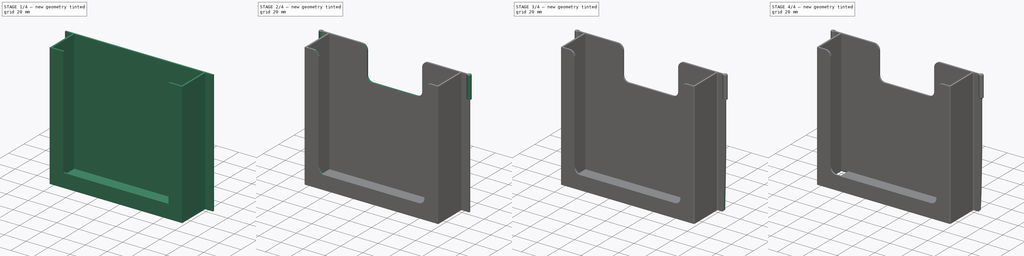
[diagram: build sequence overview — one tinted view per stage of 4, left to right]
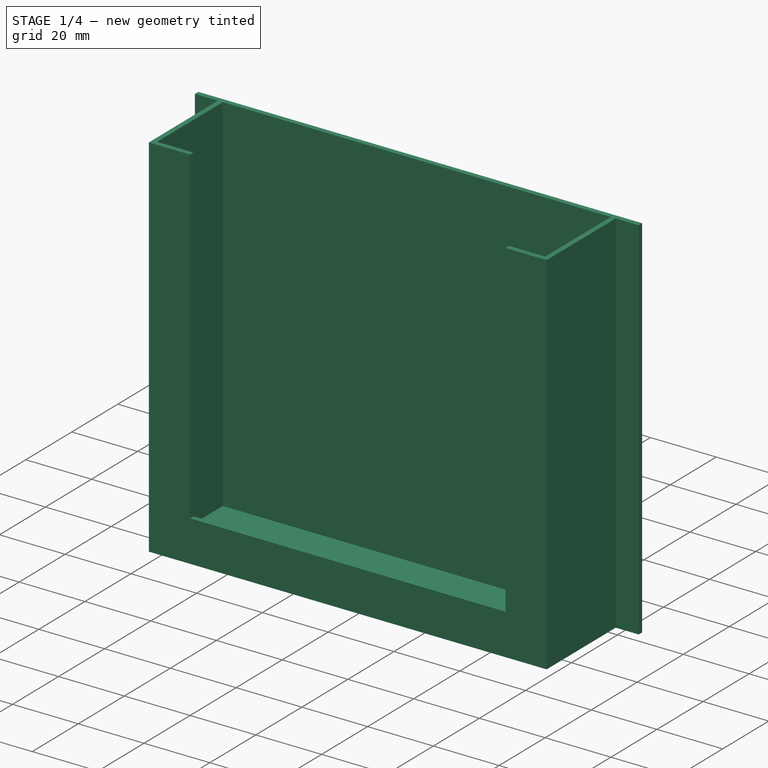
[diagram: stage 1 of 4 — iso view after this stage's code; geometry added in this stage tinted green]
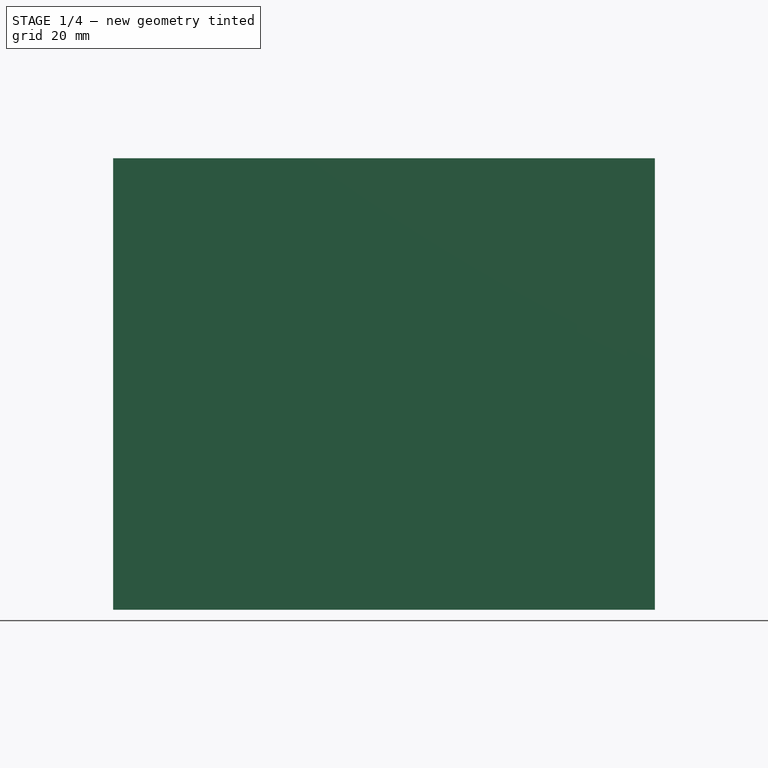
[diagram: stage 1 of 4 — front view after this stage's code; geometry added in this stage tinted green]
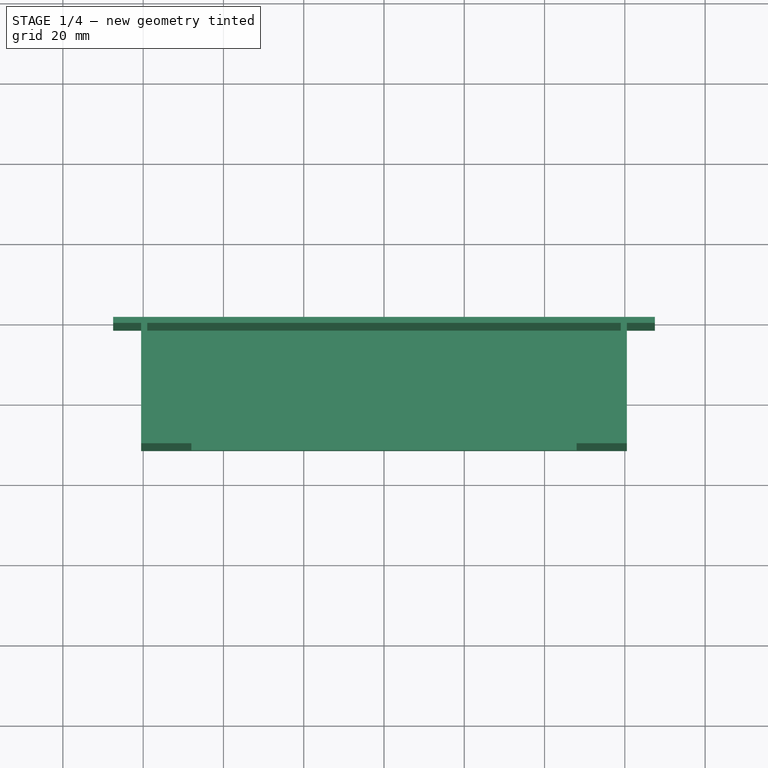
[diagram: stage 1 of 4 — top view after this stage's code; geometry added in this stage tinted green]
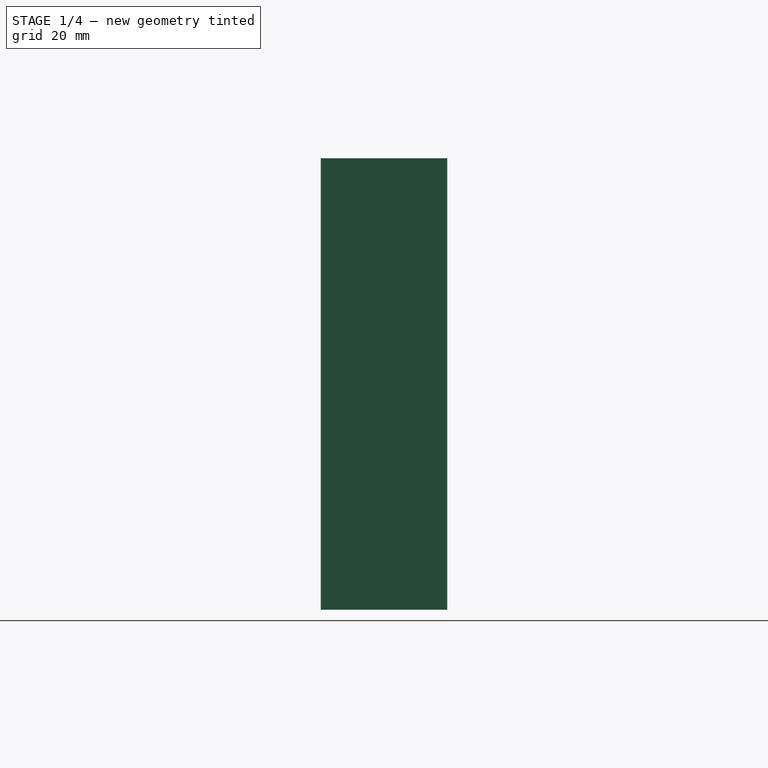
[diagram: stage 1 of 4 — right view after this stage's code; geometry added in this stage tinted green]
FCSTD DOCUMENT  (FreeCAD 0.19R24276 (Git))
Label: esd_insert_test_big
License: All rights reserved
LicenseURL: http://en.wikipedia.org/wiki/All_rights_reserved
objects: Sketcher::SketchObject×6, PartDesign::Pocket×4, PartDesign::Chamfer×4, PartDesign::Pad×2, PartDesign::Fillet×2, PartDesign::Body×1
note: 31 computed .brp shape members not serialized (recipe doc carries the construction recipe); baked Part::Feature solids carry a one-line shape summary decoded from their .brp

FEATURE [Sketcher::SketchObject] Sketch
  FullyConstrained = true
  MapMode = 5
  Support = -> [XY_Plane]
  sketch-geometry (34):
    g0: LineSegment StartX=-67.5 StartY=0 StartZ=0 EndX=67.5 EndY=0 EndZ=0
    g1: LineSegment StartX=-67.5 StartY=0 StartZ=0 EndX=-67.5 EndY=-1.5 EndZ=0
    g2: LineSegment StartX=-67.5 StartY=-1.5 StartZ=0 EndX=-60.5 EndY=-1.5 EndZ=0
    g3: LineSegment StartX=-60.5 StartY=-1.5 StartZ=0 EndX=-60.5 EndY=-31.5 EndZ=0
    g4: LineSegment StartX=-60.5 StartY=-31.5 StartZ=0 EndX=-49 EndY=-31.5 EndZ=0
    g5: LineSegment StartX=-49 StartY=-31.5 StartZ=0 EndX=-49 EndY=-30 EndZ=0
    g6: LineSegment StartX=-49 StartY=-30 StartZ=0 EndX=-59 EndY=-30 EndZ=0
    g7: LineSegment StartX=-59 StartY=-30 StartZ=0 EndX=-59 EndY=-1.5 EndZ=0
    g8: LineSegment StartX=-59 StartY=-1.5 StartZ=0 EndX=59 EndY=-1.5 EndZ=0
    g9: LineSegment StartX=59 StartY=-1.5 StartZ=0 EndX=59 EndY=-30 EndZ=0
    g10: LineSegment StartX=59 StartY=-30 StartZ=0 EndX=49 EndY=-30 EndZ=0
    g11: LineSegment StartX=49 StartY=-30 StartZ=0 EndX=49 EndY=-31.5 EndZ=0
    g12: LineSegment StartX=49 StartY=-31.5 StartZ=0 EndX=60.5 EndY=-31.5 EndZ=0
    g13: LineSegment StartX=60.5 StartY=-31.5 StartZ=0 EndX=60.5 EndY=-1.5 EndZ=0
    g14: LineSegment StartX=60.5 StartY=-1.5 StartZ=0 EndX=67.5 EndY=-1.5 EndZ=0
    g15: LineSegment StartX=67.5 StartY=-1.5 StartZ=0 EndX=67.5 EndY=0 EndZ=0
    g16: LineSegment StartX=-53.5 StartY=-7.25 StartZ=0 EndX=53.5 EndY=-7.25 EndZ=0
    g17: LineSegment StartX=53.5 StartY=-7.25 StartZ=0 EndX=53.5 EndY=-24.25 EndZ=0
    g18: LineSegment StartX=53.5 StartY=-24.25 StartZ=0 EndX=-53.5 EndY=-24.25 EndZ=0
    g19: LineSegment StartX=-53.5 StartY=-24.25 StartZ=0 EndX=-53.5 EndY=-7.25 EndZ=0
    g20: LineSegment StartX=-59 StartY=-1.5 StartZ=0 EndX=59 EndY=-1.5 EndZ=0
    g21: LineSegment StartX=59 StartY=-1.5 StartZ=0 EndX=59 EndY=-30 EndZ=0
    g22: LineSegment StartX=59 StartY=-30 StartZ=0 EndX=-59 EndY=-30 EndZ=0
    g23: LineSegment StartX=-59 StartY=-30 StartZ=0 EndX=-59 EndY=-1.5 EndZ=0
    g24: LineSegment StartX=-53.5 StartY=-7.25 StartZ=0 EndX=0 EndY=-15.75 EndZ=0
    g25: LineSegment StartX=0 StartY=-15.75 StartZ=0 EndX=53.5 EndY=-7.25 EndZ=0
    g26: LineSegment StartX=-53.5 StartY=-24.25 StartZ=0 EndX=0 EndY=-15.75 EndZ=0
    g27: LineSegment StartX=-59 StartY=-1.5 StartZ=0 EndX=0 EndY=-15.75 EndZ=0
    g28: LineSegment StartX=0 StartY=-15.75 StartZ=0 EndX=59 EndY=-1.5 EndZ=0
    g29: LineSegment StartX=0 StartY=-15.75 StartZ=0 EndX=-59 EndY=-30 EndZ=0
    g30: LineSegment StartX=-67.5 StartY=0 StartZ=0 EndX=0 EndY=-15.75 EndZ=0
    g31: LineSegment StartX=0 StartY=-15.75 StartZ=0 EndX=67.5 EndY=1.8e-15 EndZ=0
    g32: LineSegment StartX=-60.5 StartY=-1.5 StartZ=0 EndX=-59 EndY=-1.5 EndZ=0
    g33: LineSegment StartX=60.5 StartY=-31.5 StartZ=0 EndX=-60.5 EndY=-31.5 EndZ=0
  constraints (91):
    c: PointOnObject(g0,g-1)
    c: PointOnObject(g0,g-1)
    c: Coincident(g0,g1)
    c: Vertical(g1)
    c: Coincident(g1,g2)
    c: Horizontal(g2)
    c: Coincident(g2,g3)
    c: Vertical(g3)
    c: Coincident(g3,g4)
    c: Horizontal(g4)
    c: Coincident(g4,g5)
    c: Vertical(g5)
    c: Coincident(g5,g6)
    c: Horizontal(g6)
    c: Coincident(g6,g7)
    c: Vertical(g7)
    c: Coincident(g7,g8)
    c: Horizontal(g8)
    c: Coincident(g8,g9)
    c: Vertical(g9)
    c: Coincident(g9,g10)
    c: Horizontal(g10)
    c: Coincident(g10,g11)
    c: Vertical(g11)
    c: Coincident(g11,g12)
    c: Horizontal(g12)
    c: Coincident(g12,g13)
    c: Vertical(g13)
    c: Coincident(g13,g14)
    c: Horizontal(g14)
    c: Coincident(g14,g15)
    c: Coincident(g15,g0)
    c: Vertical(g15)
    c: Coincident(g16,g17)
    c: Coincident(g17,g18)
    c: Coincident(g18,g19)
    c: Coincident(g19,g16)
    c: Horizontal(g16)
    c: Horizontal(g18)
    c: Vertical(g17)
    c: Vertical(g19)
    c: DistanceX(g16,g16) = 107
    c: DistanceY(g19,g19) = 17
    c: Coincident(g20,g21)
    c: Coincident(g21,g22)
    c: Coincident(g22,g23)
    c: Coincident(g23,g20)
    c: Horizontal(g22)
    c: Vertical(g21)
    c: Vertical(g23)
    c: DistanceX(g20,g20) = 118
    c: DistanceY(g23,g23) = 28.5
    c: Coincident(g16,g24)
    c: PointOnObject(g24,g-2)
    c: Coincident(g24,g25)
    c: Coincident(g25,g16)
    c: Coincident(g18,g26)
    c: Coincident(g26,g24)
    c: Coincident(g20,g27)
    c: Coincident(g27,g24)
    c: Coincident(g27,g28)
    c: Coincident(g28,g20)
    c: Coincident(g24,g29)
    c: Coincident(g29,g22)
    c: Equal(g24,g26)
    c: Equal(g26,g25)
    c: Equal(g27,g28)
    c: Equal(g28,g29)
    c: DistanceY(g1,g1) = 1.5
    c: Equal(g1,g15)
    c: Coincident(g0,g30)
    c: Coincident(g30,g24)
    c: Coincident(g30,g31)
    c: Coincident(g31,g0)
    c: Equal(g31,g30)
    c: DistanceX(g0,g0) = 135
    c: Coincident(g7,g20)
    c: Coincident(g20,g8)
    c: Coincident(g32,g2)
    c: Coincident(g32,g7)
    c: Horizontal(g32)
    c: Equal(g14,g2)
    c: DistanceX(g8,g13) = 1.5
    c: PointOnObject(g5,g22)
    c: PointOnObject(g10,g22)
    c: Equal(g11,g15)
    c: Equal(g5,g1)
    c: Equal(g4,g12)
    c: DistanceX(g10,g10) = 10
    c: Coincident(g33,g13)
    c: Coincident(g33,g3)
FEATURE [PartDesign::Pad] Pad
  Direction = (1,1,1)
  Length = 112.5
  Length2 = 100
  Profile = -> Sketch
  Reversed = true
  Type = 0
FEATURE [Sketcher::SketchObject] Sketch002
  FullyConstrained = true
  MapMode = 5
  Support = -> [XY_Plane]
  sketch-geometry (6):
    g0: LineSegment StartX=-59 StartY=-1.5 StartZ=0 EndX=59 EndY=-1.5 EndZ=0
    g1: LineSegment StartX=59 StartY=-1.5 StartZ=0 EndX=59 EndY=-30 EndZ=0
    g2: LineSegment StartX=59 StartY=-30 StartZ=0 EndX=-59 EndY=-30 EndZ=0
    g3: LineSegment StartX=-59 StartY=-30 StartZ=0 EndX=-59 EndY=-1.5 EndZ=0
    g4: LineSegment StartX=-59 StartY=-30 StartZ=0 EndX=0 EndY=0 EndZ=0
    g5: LineSegment StartX=0 StartY=0 StartZ=0 EndX=59 EndY=-30 EndZ=0
  constraints (16):
    c: Coincident(g0,g1)
    c: Coincident(g1,g2)
    c: Coincident(g2,g3)
    c: Coincident(g3,g0)
    c: Horizontal(g0)
    c: Horizontal(g2)
    c: Vertical(g1)
    c: Vertical(g3)
    c: DistanceY(g0,g-1) = 1.5
    c: DistanceX(g0,g0) = 118
    c: Coincident(g2,g4)
    c: Coincident(g4,g-1)
    c: Coincident(g4,g5)
    c: Coincident(g5,g1)
    c: Equal(g4,g5)
    c: DistanceY(g3,g3) = 28.5
FEATURE [PartDesign::Pocket] Pocket
  BaseFeature = -> Pad
  Length = 111
  Length2 = 100
  Profile = -> Sketch002
  Type = 0
FEATURE [Sketcher::SketchObject] Sketch003
  FullyConstrained = true
  MapMode = 5
  Support = -> [XY_Plane]
  sketch-geometry (6):
    g0: LineSegment StartX=-48 StartY=-10 StartZ=0 EndX=0 EndY=0 EndZ=0
    g1: LineSegment StartX=0 StartY=0 StartZ=0 EndX=48 EndY=-10 EndZ=0
    g2: LineSegment StartX=-48 StartY=-10 StartZ=0 EndX=48 EndY=-10 EndZ=0
    g3: LineSegment StartX=48 StartY=-10 StartZ=0 EndX=48 EndY=-40 EndZ=0
    g4: LineSegment StartX=48 StartY=-40 StartZ=0 EndX=-48 EndY=-40 EndZ=0
    g5: LineSegment StartX=-48 StartY=-40 StartZ=0 EndX=-48 EndY=-10 EndZ=0
  constraints (16):
    c: Coincident(g0,g-1)
    c: Coincident(g0,g1)
    c: Coincident(g2,g3)
    c: Coincident(g3,g4)
    c: Coincident(g4,g5)
    c: Coincident(g5,g2)
    c: Horizontal(g2)
    c: Horizontal(g4)
    c: Vertical(g3)
    c: Vertical(g5)
    c: Coincident(g2,g0)
    c: Coincident(g2,g1)
    c: DistanceX(g2,g2) = 96
    c: Equal(g0,g1)
    c: DistanceY(g2,g-1) = 10
    c: DistanceY(g5,g5) = 30
FEATURE [PartDesign::Pocket] Pocket001
  BaseFeature = -> Pocket
  Length = 100
  Length2 = 100
  Profile = -> Sketch003
  Type = 0
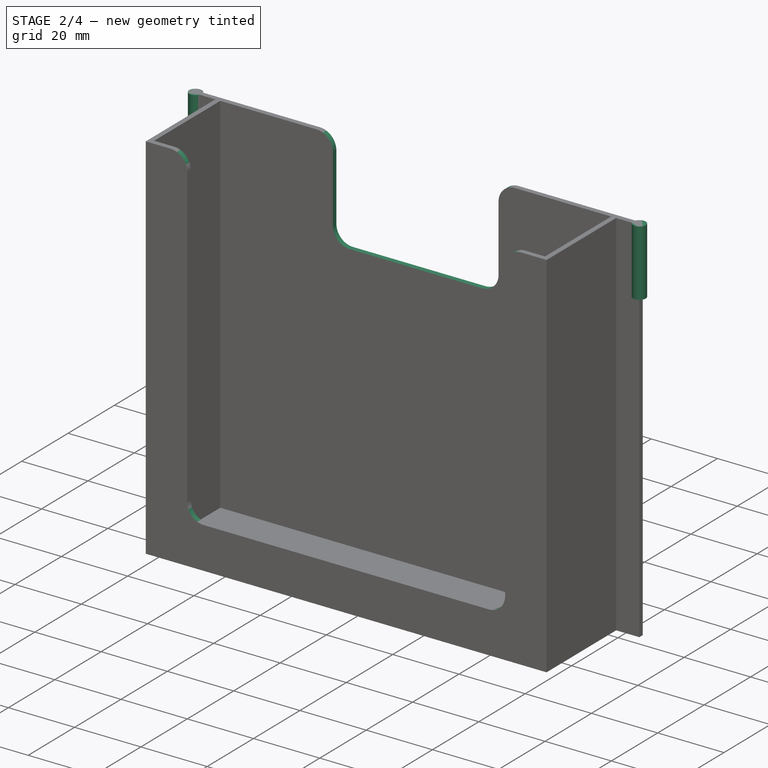
[diagram: stage 2 of 4 — iso view after this stage's code; geometry added in this stage tinted green]
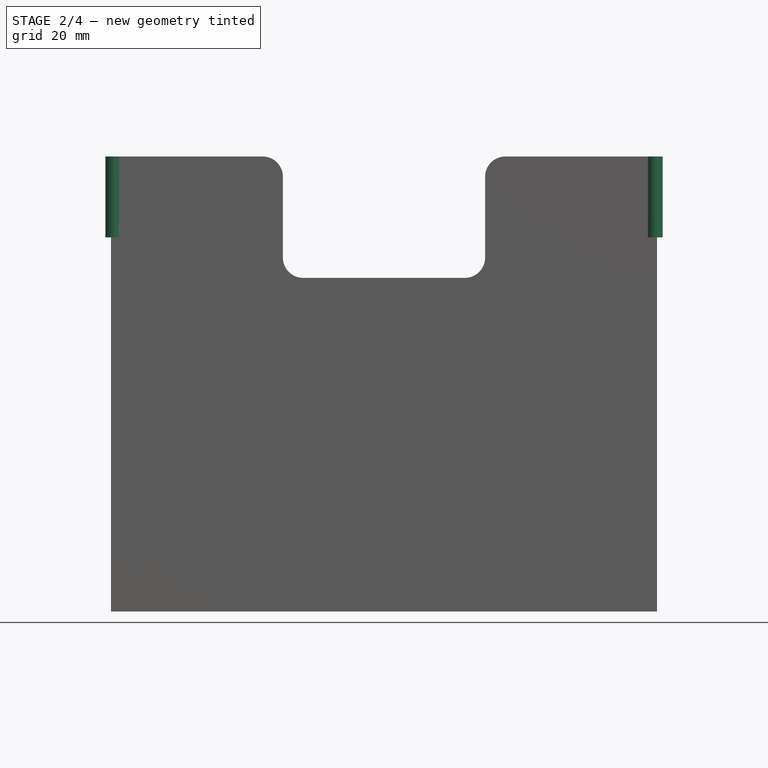
[diagram: stage 2 of 4 — front view after this stage's code; geometry added in this stage tinted green]
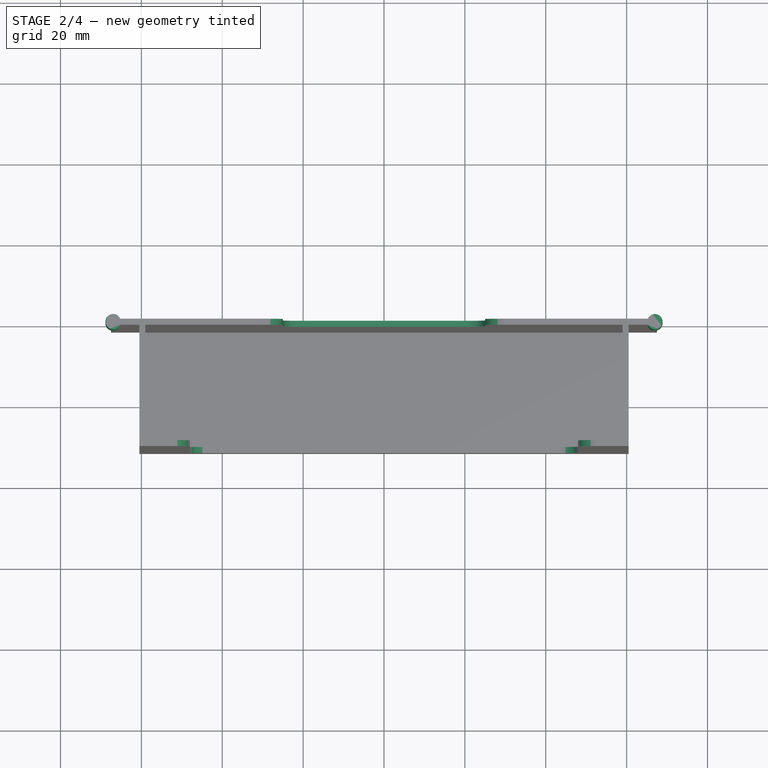
[diagram: stage 2 of 4 — top view after this stage's code; geometry added in this stage tinted green]
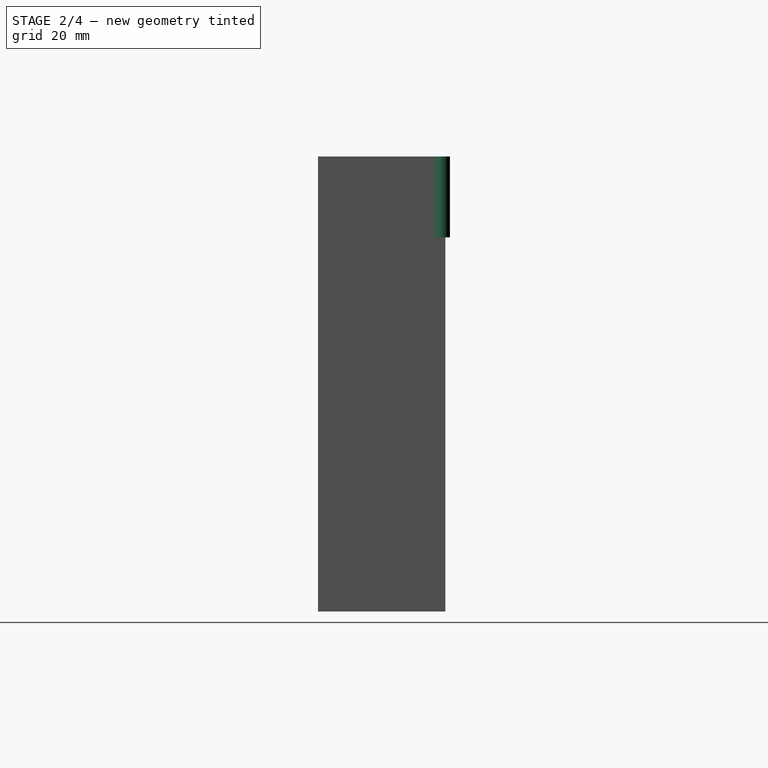
[diagram: stage 2 of 4 — right view after this stage's code; geometry added in this stage tinted green]
FEATURE [Sketcher::SketchObject] Sketch004
  FullyConstrained = true
  MapMode = 5
  Support = -> [XY_Plane]
  sketch-geometry (6):
    g0: Circle CenterX=-67 CenterY=-0.75 CenterZ=0 NormalX=0 NormalY=0 NormalZ=1 AngleXU=0 Radius=1.9
    g1: Circle CenterX=67 CenterY=-0.75 CenterZ=0 NormalX=0 NormalY=0 NormalZ=1 AngleXU=0 Radius=1.9
    g2: LineSegment StartX=-67 StartY=-0.75 StartZ=0 EndX=-67 EndY=0 EndZ=0
    g3: LineSegment StartX=-67 StartY=0 StartZ=0 EndX=0 EndY=0 EndZ=0
    g4: LineSegment StartX=0 StartY=0 StartZ=0 EndX=67 EndY=0 EndZ=0
    g5: LineSegment StartX=67 StartY=0 StartZ=0 EndX=67 EndY=-0.75 EndZ=0
  constraints (16):
    c: Coincident(g2,g0)
    c: Coincident(g2,g3)
    c: Coincident(g3,g-1)
    c: Coincident(g3,g4)
    c: Coincident(g4,g5)
    c: Coincident(g5,g1)
    c: PointOnObject(g4,g-1)
    c: PointOnObject(g2,g-1)
    c: Equal(g3,g4)
    c: DistanceX(g2,g4) = 134
    c: Vertical(g5)
    c: Vertical(g2)
    c: Diameter(g0) = 3.8
    c: Equal(g0,g1)
    c: Equal(g2,g5)
    c: DistanceY(g2,g2) = 0.75
FEATURE [PartDesign::Pad] Pad001
  BaseFeature = -> Pocket001
  Direction = (1,1,1)
  Length = 20
  Length2 = 100
  Profile = -> Sketch004
  Refine = true
  Reversed = true
  Type = 0
FEATURE [Sketcher::SketchObject] Sketch005
  FullyConstrained = true
  MapMode = 5
  Support = -> [XY_Plane]
  sketch-geometry (5):
    g0: LineSegment StartX=25 StartY=-25 StartZ=0 EndX=25 EndY=25 EndZ=0
    g1: LineSegment StartX=25 StartY=25 StartZ=0 EndX=-25 EndY=25 EndZ=0
    g2: LineSegment StartX=-25 StartY=25 StartZ=0 EndX=-25 EndY=-25 EndZ=0
    g3: LineSegment StartX=-25 StartY=-25 StartZ=0 EndX=25 EndY=-25 EndZ=0
    g4: Circle CenterX=0 CenterY=0 CenterZ=0 NormalX=0 NormalY=0 NormalZ=1 AngleXU=0 Radius=35.3553
  constraints (14):
    c: Coincident(g0,g1)
    c: Coincident(g1,g2)
    c: Coincident(g2,g3)
    c: Coincident(g3,g0)
    c: Equal(g0,g1)
    c: Equal(g0,g2)
    c: Equal(g0,g3)
    c: PointOnObject(g0,g4)
    c: PointOnObject(g1,g4)
    c: PointOnObject(g2,g4)
    c: PointOnObject(g3,g4)
    c: Coincident(g4,g-1)
    c: Horizontal(g1)
    c: DistanceX(g1,g1) = 50
FEATURE [PartDesign::Pocket] Pocket002
  BaseFeature = -> Pad001
  Length = 30
  Length2 = 100
  Profile = -> Sketch005
  Type = 0
FEATURE [PartDesign::Fillet] Fillet
  Base = -> Pocket002 [Edge25,Edge13,Edge53,Edge67,Edge23,Edge9,Edge19,Edge21]
  BaseFeature = -> Pocket002
  Radius = 5
  SupportTransform = false
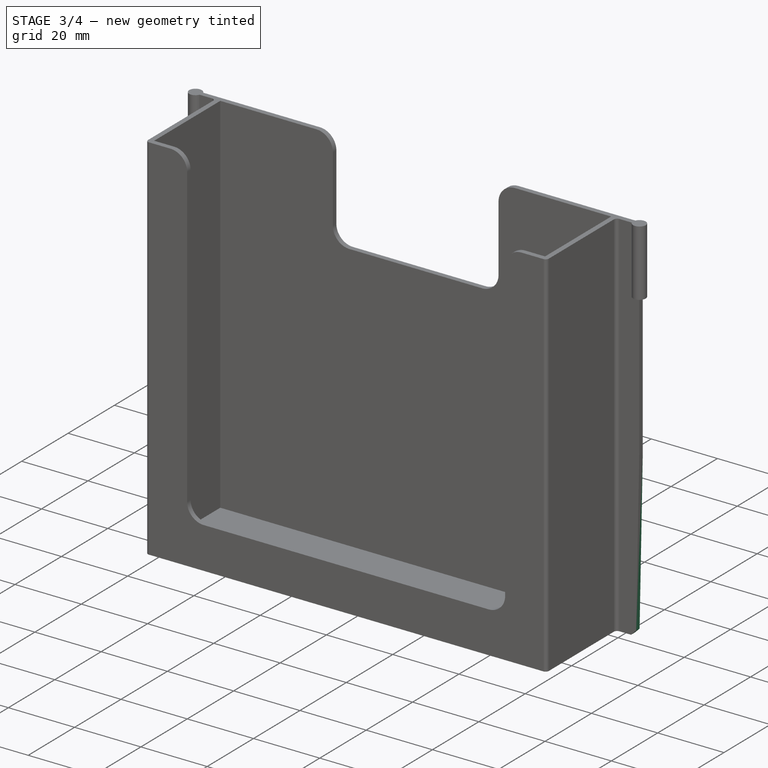
[diagram: stage 3 of 4 — iso view after this stage's code; geometry added in this stage tinted green]
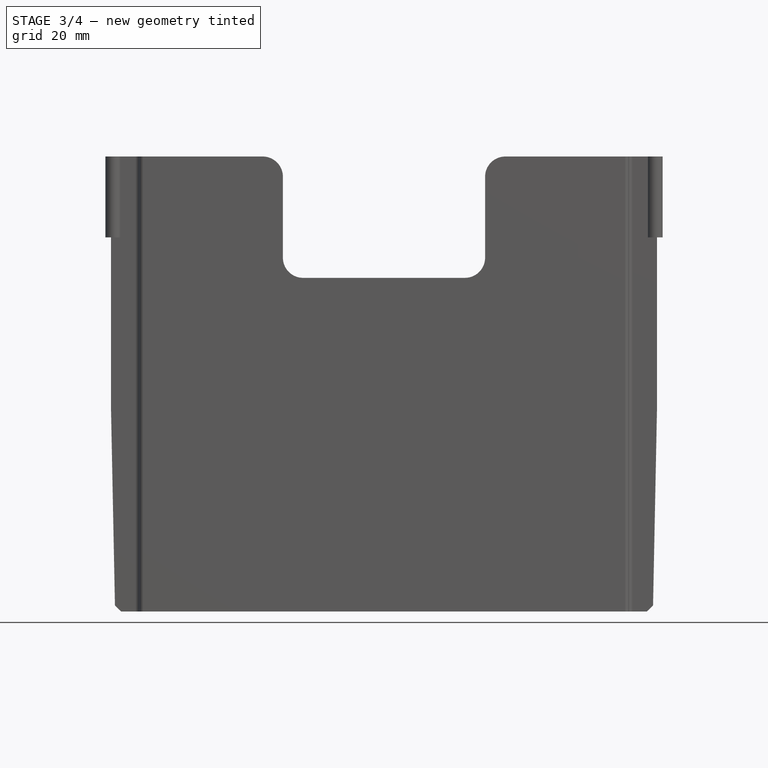
[diagram: stage 3 of 4 — front view after this stage's code; geometry added in this stage tinted green]
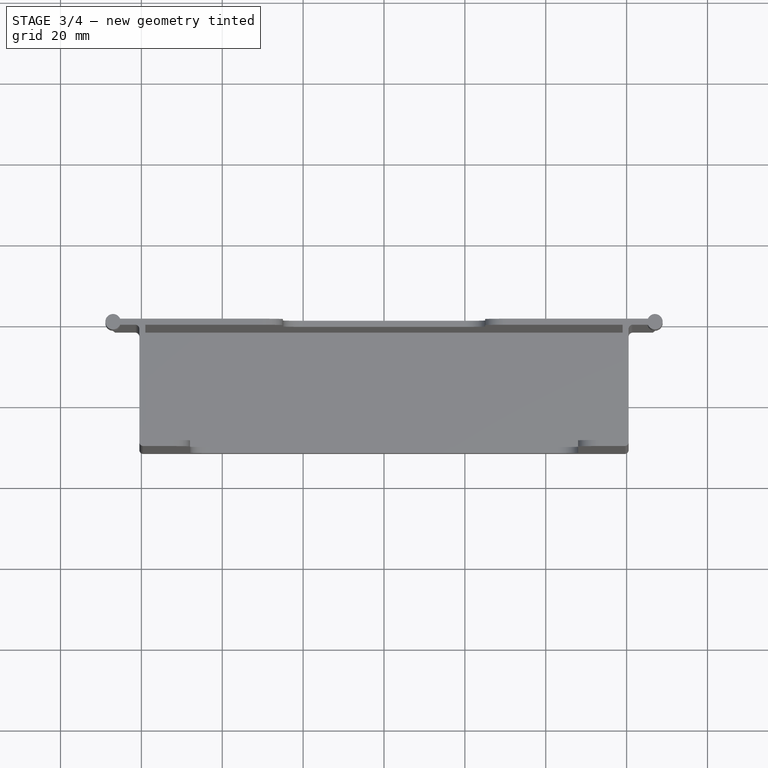
[diagram: stage 3 of 4 — top view after this stage's code; geometry added in this stage tinted green]
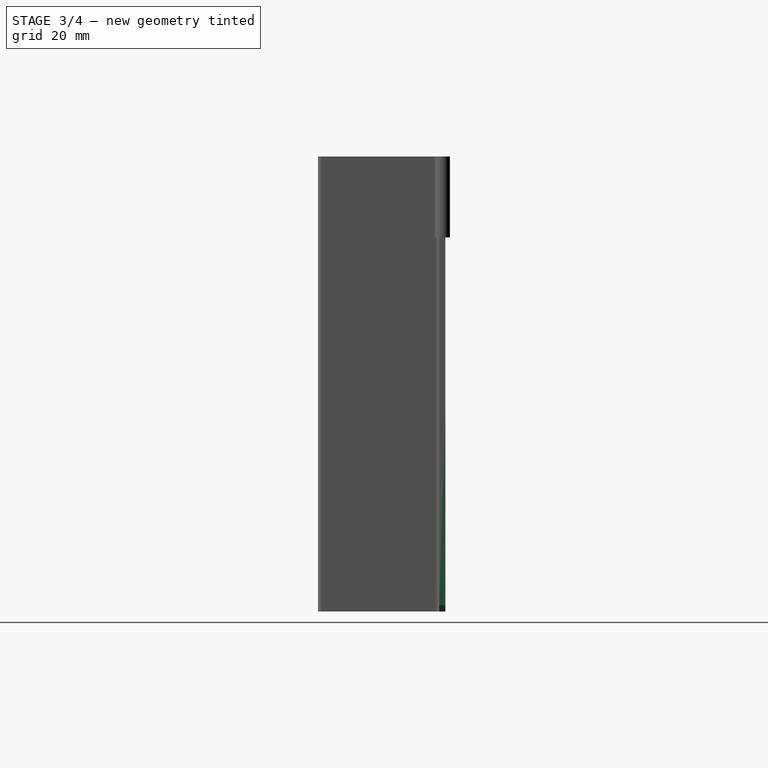
[diagram: stage 3 of 4 — right view after this stage's code; geometry added in this stage tinted green]
FEATURE [PartDesign::Fillet] Fillet001
  Base = -> Fillet [Edge37,Edge7,Edge3,Edge25]
  BaseFeature = -> Fillet
  Radius = 1
  SupportTransform = false
FEATURE [PartDesign::Chamfer] Chamfer
  Angle = 45
  Base = -> Fillet001 [Edge36,Edge37]
  BaseFeature = -> Fillet001
  ChamferType = 1
  FlipDirection = false
  Size = 1
  Size2 = 50
  SupportTransform = false
FEATURE [PartDesign::Chamfer] Chamfer001
  Angle = 45
  Base = -> Chamfer [Edge6,Edge2]
  BaseFeature = -> Chamfer
  ChamferType = 0
  FlipDirection = false
  Size = 1.5
  Size2 = 1
  SupportTransform = false
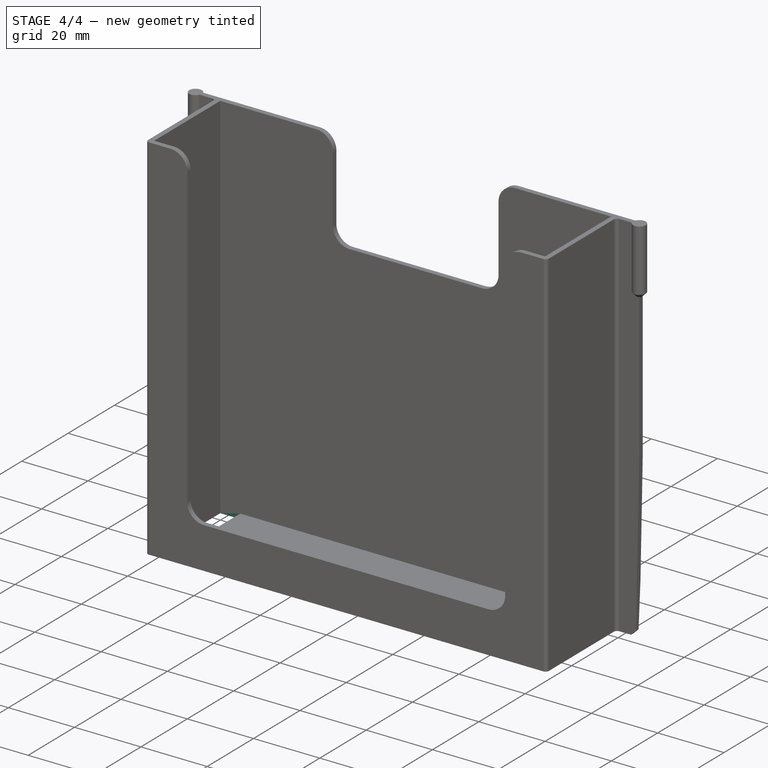
[diagram: stage 4 of 4 — iso view after this stage's code; geometry added in this stage tinted green]
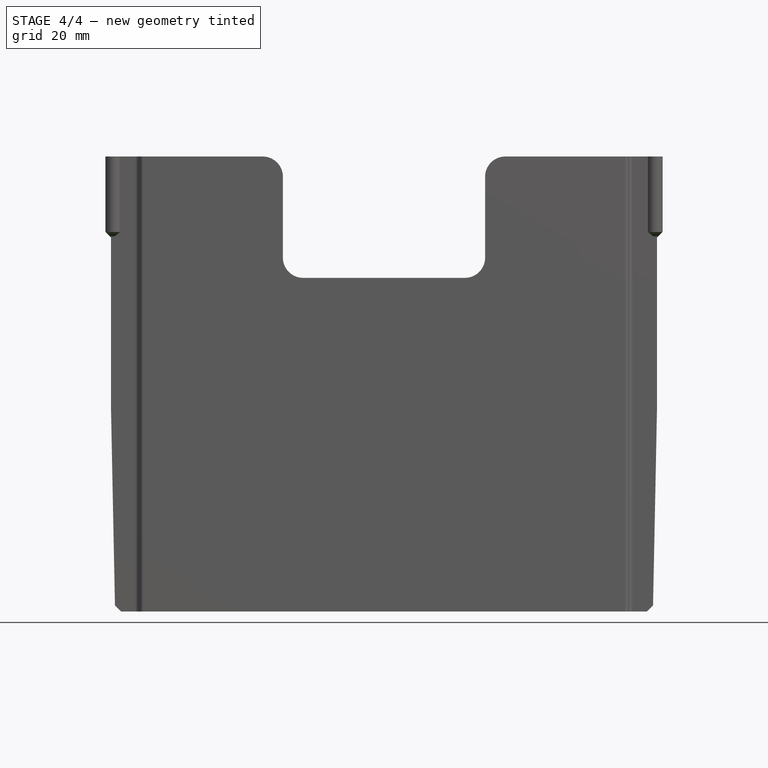
[diagram: stage 4 of 4 — front view after this stage's code; geometry added in this stage tinted green]
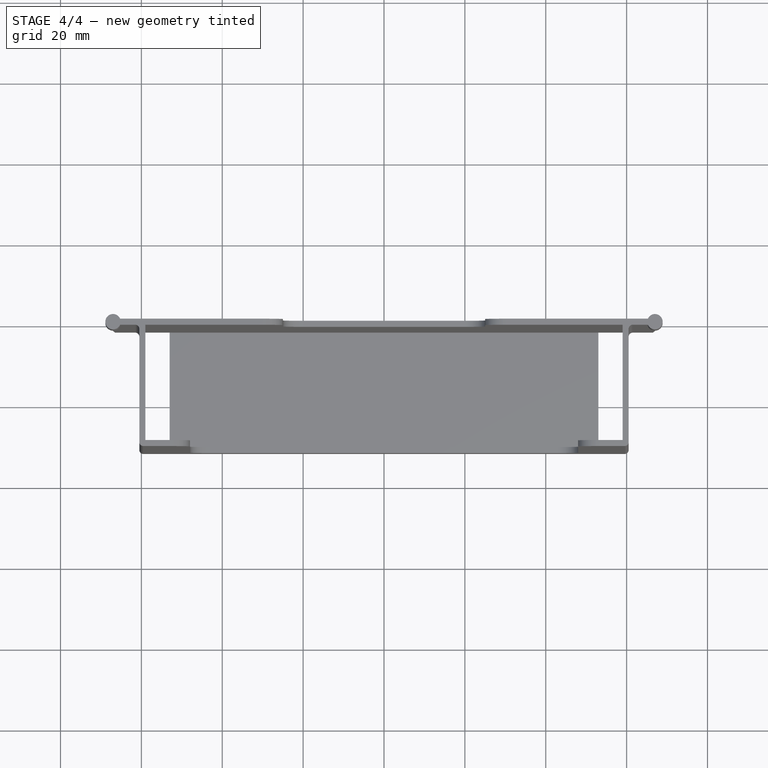
[diagram: stage 4 of 4 — top view after this stage's code; geometry added in this stage tinted green]
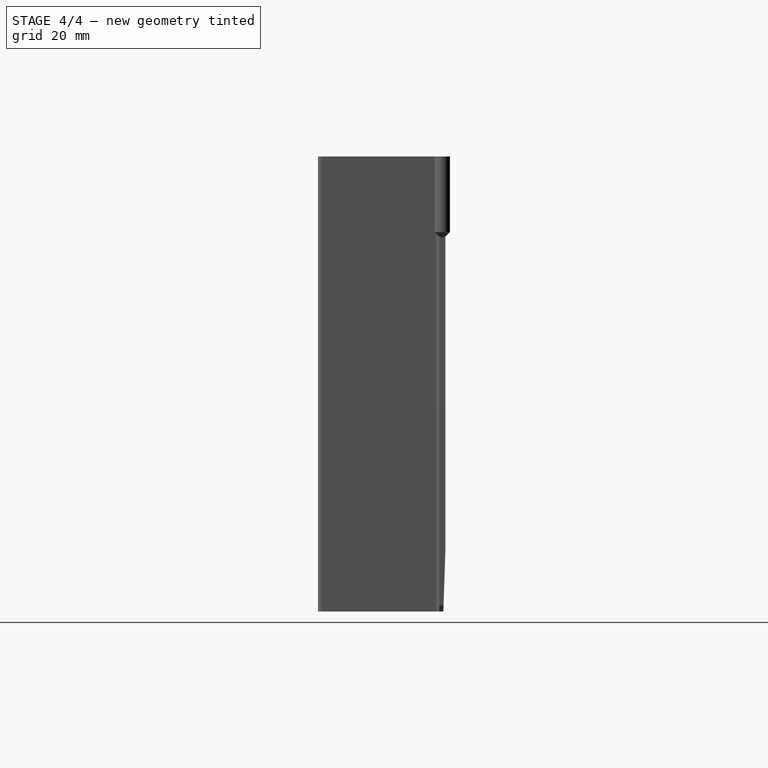
[diagram: stage 4 of 4 — right view after this stage's code; geometry added in this stage tinted green]
FEATURE [PartDesign::Chamfer] Chamfer002
  Angle = 45
  Base = -> Chamfer001 [Edge82,Edge78]
  BaseFeature = -> Chamfer001
  ChamferType = 0
  FlipDirection = false
  Size = 1.35
  Size2 = 1
  SupportTransform = false
FEATURE [PartDesign::Chamfer] Chamfer003
  Angle = 45
  Base = -> Chamfer002 [Edge36]
  BaseFeature = -> Chamfer002
  ChamferType = 1
  FlipDirection = false
  Size = 0.5
  Size2 = 15
  SupportTransform = false
FEATURE [Sketcher::SketchObject] Sketch006
  ExternalGeometry = -> [Chamfer003]
  FullyConstrained = true
  MapMode = 5
  Placement = pos=(0,0,-111) rot=(0,0,1;0rad)
  Support = -> [Chamfer003]
  sketch-geometry (8):
    g0: LineSegment StartX=59 StartY=-1.5 StartZ=0 EndX=53 EndY=-1.5 EndZ=0
    g1: LineSegment StartX=53 StartY=-1.5 StartZ=0 EndX=53 EndY=-30 EndZ=0
    g2: LineSegment StartX=53 StartY=-30 StartZ=0 EndX=59 EndY=-30 EndZ=0
    g3: LineSegment StartX=59 StartY=-30 StartZ=0 EndX=59 EndY=-1.5 EndZ=0
    g4: LineSegment StartX=-59 StartY=-1.5 StartZ=0 EndX=-53 EndY=-1.5 EndZ=0
    g5: LineSegment StartX=-53 StartY=-1.5 StartZ=0 EndX=-53 EndY=-30 EndZ=0
    g6: LineSegment StartX=-53 StartY=-30 StartZ=0 EndX=-59 EndY=-30 EndZ=0
    g7: LineSegment StartX=-59 StartY=-30 StartZ=0 EndX=-59 EndY=-1.5 EndZ=0
  constraints (20):
    c: Coincident(g0,g1)
    c: Coincident(g1,g2)
    c: Coincident(g2,g3)
    c: Coincident(g3,g0)
    c: Horizontal(g0)
    c: Horizontal(g2)
    c: Vertical(g1)
    c: Coincident(g0,g-4)
    c: Coincident(g4,g5)
    c: Coincident(g5,g6)
    c: Coincident(g7,g4)
    c: Horizontal(g4)
    c: Horizontal(g6)
    c: Coincident(g4,g-3)
    c: Coincident(g2,g-4)
    c: Coincident(g6,g-3)
    c: Coincident(g7,g6)
    c: Equal(g6,g2)
    c: Vertical(g5)
    c: DistanceX(g6,g6) = 6
FEATURE [PartDesign::Pocket] Pocket003
  BaseFeature = -> Chamfer003
  Length = 5
  Length2 = 100
  Profile = -> Sketch006
  Refine = true
  Type = 0
FEATURE [PartDesign::Body] Body
  Group = -> [Sketch,Pad,Sketch002,Pocket,Sketch003,Pocket001,Sketch004,Pad001,Sketch005,Pocket002,Fillet,Fillet001,Chamfer,Chamfer001,Chamfer002,Chamfer003,Sketch006,Pocket003]
  Origin = -> Origin
  Tip = -> Pocket003
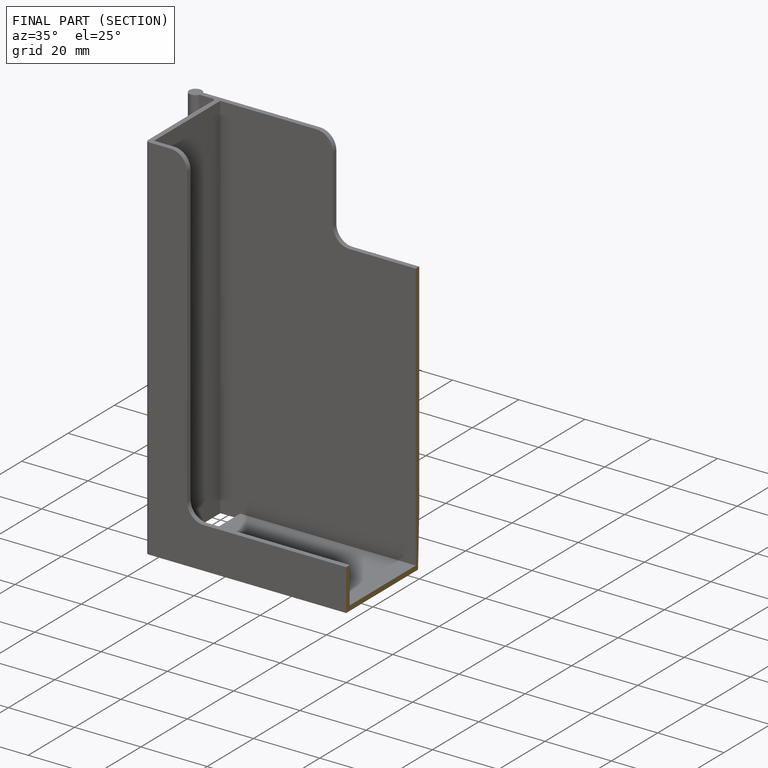
[diagram: finished part — half-section view (interior)]
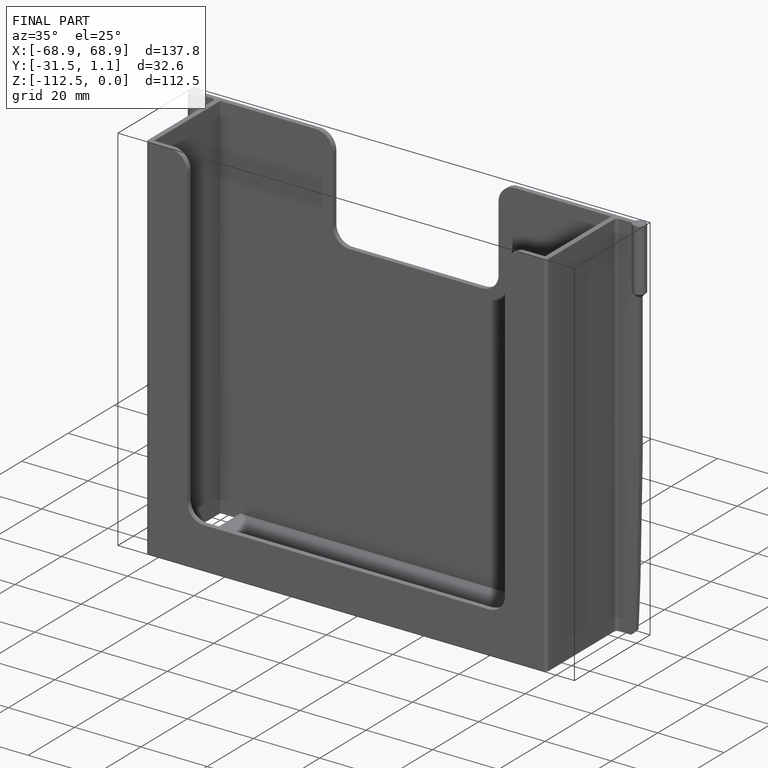
[diagram: finished part — iso view with bounding-box wireframe]
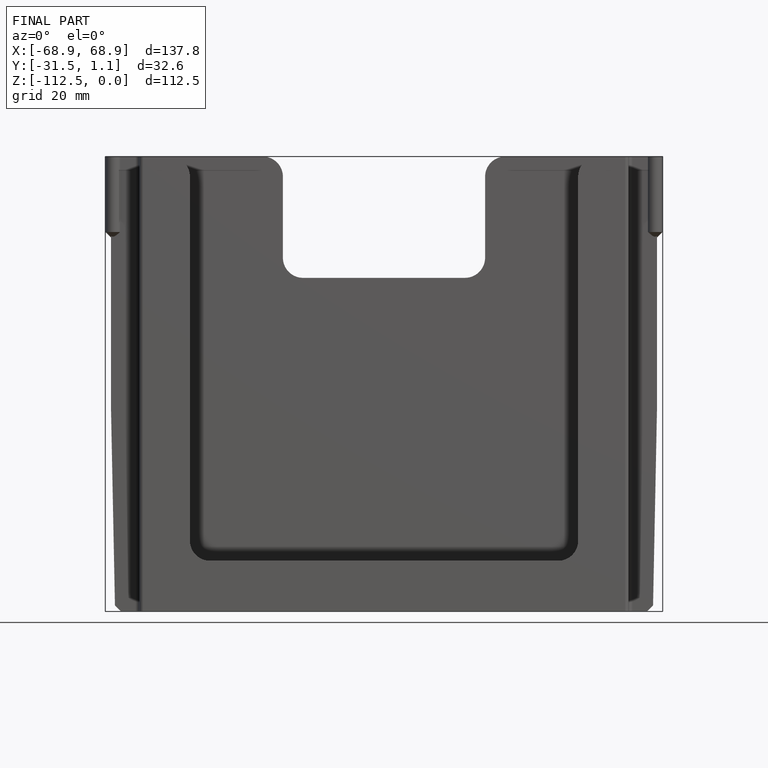
[diagram: finished part — front view with bounding-box wireframe]
